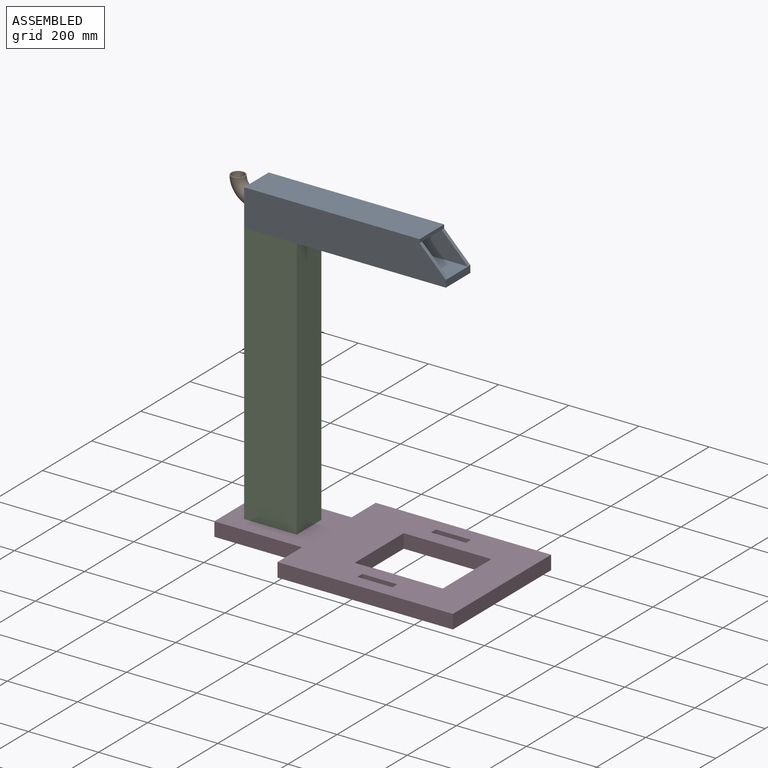
[diagram: assembled view]
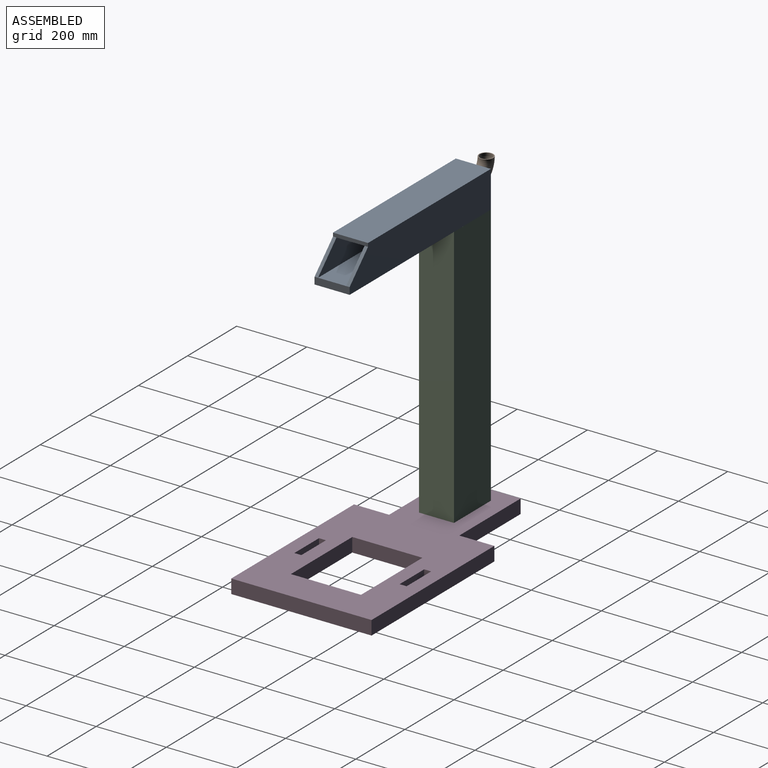
[diagram: assembled view, second angle]
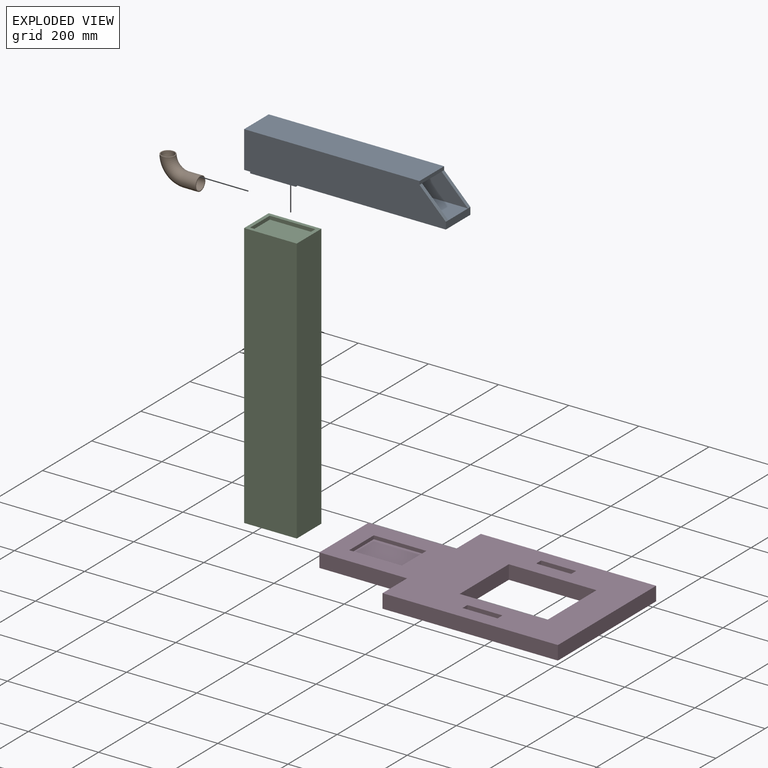
[diagram: exploded view]
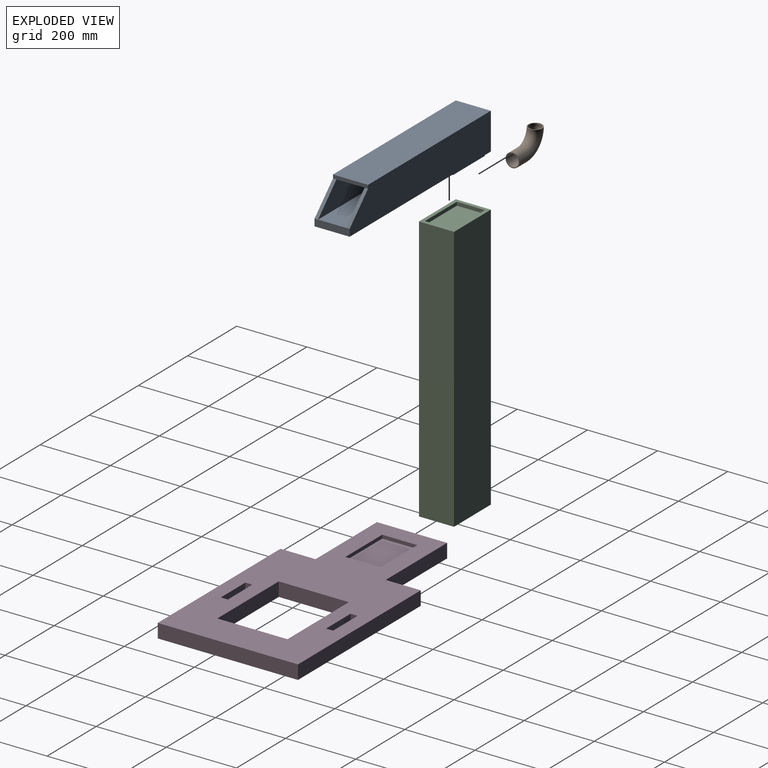
[diagram: exploded view, second angle]
ASSEMBLY  parts=4 mates=3
PART A: 20 faces, bbox 575x100x115 mm
  f0: plane 555x80mm, normal (0,0,1), area 44400mm2, adj f1,f2,f8,f18
  f1: plane 555x75mm, normal (0,-1,0), area 38812.5mm2, adj f0,f3,f14,f18
  f2: plane 555x75mm, normal (0,1,0), area 38812.5mm2, adj f0,f3,f15,f18
  f3: plane 480x80mm, normal (0,0,-1), area 38400mm2, adj f1,f2,f16,f18
  f4: plane 575x100mm, normal (0,0,-1), area 47100mm2, adj f5,f6,f7,f8,f9,f10,f11,f12
  f5: plane 575x105mm, normal (0,1,0), area 56812.5mm2, adj f4,f6,f8,f14,f16,f17
  f6: plane 105x100mm, normal (-1,0,0), area 9243.4mm2, adj f4,f5,f7,f17,f19
  f7: plane 575x105mm, normal (0,-1,0), area 56812.5mm2, adj f4,f6,f8,f15,f16,f17
  f8: plane 100x20mm, normal (1,0,0), area 2000mm2, adj f0,f4,f5,f7,f14,f15
  f9: plane 130x10mm, normal (0,1,0), area 1300mm2, adj f4,f10,f12,f13
  f10: plane 80x10mm, normal (1,0,0), area 800mm2, adj f4,f9,f11,f13
  f11: plane 130x10mm, normal (0,-1,0), area 1300mm2, adj f4,f10,f12,f13
  f12: plane 80x10mm, normal (-1,0,0), area 800mm2, adj f4,f9,f11,f13
  f13: plane 130x80mm, normal (0,0,-1), area 10400mm2, adj f9,f10,f11,f12
  f14: plane 75x75mm, normal (0.71,0,0.71), area 1060.7mm2, adj f1,f5,f8,f16
  f15: plane 75x75mm, normal (0.71,0,0.71), area 1060.7mm2, adj f2,f7,f8,f16
  f16: plane 100x10mm, normal (1,0,0), area 1000mm2, adj f3,f5,f7,f14,f15,f17
  f17: plane 500x100mm, normal (0,0,1), area 50000mm2, adj f5,f6,f7,f16
  f18: plane 80x75mm, normal (1,0,0), area 4743.4mm2, adj f0,f1,f2,f3,f19
  f19: cylinder r=20mm len=40mm, axis (-1,0,0), area 2513.3mm2, adj f6,f18
PART B: 6 faces, bbox 118.5x40x78.5 mm
  f0: cylinder r=20mm len=40mm, axis (-1,0,0), area 5026.5mm2, adj f1,f2
  f1: plane 40x40mm, normal (1,0,0), area 294.5mm2, adj f0,f4
  f2: torus R=52.5mm, axis (0,-1,0), area 10363.1mm2, adj f0,f3
  f3: plane 40x40mm, normal (0,0,1), area 294.5mm2, adj f2,f5
  f4: cylinder r=17.5mm len=40mm, axis (-1,0,0), area 4398.2mm2, adj f1,f5
  f5: torus R=52.5mm, axis (0,-1,0), area 9067.7mm2, adj f3,f4
PART C: 11 faces, bbox 150x100x760 mm
  f0: plane 150x100mm, normal (0,0,1), area 4600mm2, adj f1,f2,f3,f4,f6,f7,f8,f9
  f1: plane 760x150mm, normal (0,1,0), area 114000mm2, adj f0,f2,f4,f5
  f2: plane 760x100mm, normal (-1,0,0), area 76000mm2, adj f0,f1,f3,f5
  f3: plane 760x150mm, normal (0,-1,0), area 114000mm2, adj f0,f2,f4,f5
  f4: plane 760x100mm, normal (1,0,0), area 76000mm2, adj f0,f1,f3,f5
  f5: plane 150x100mm, normal (0,0,-1), area 15000mm2, adj f1,f2,f3,f4
  f6: plane 130x10mm, normal (0,-1,0), area 1300mm2, adj f0,f7,f9,f10
  f7: plane 80x10mm, normal (-1,0,0), area 800mm2, adj f0,f6,f8,f10
  f8: plane 130x10mm, normal (0,1,0), area 1300mm2, adj f0,f7,f9,f10
  f9: plane 80x10mm, normal (1,0,0), area 800mm2, adj f0,f6,f8,f10
  f10: plane 130x80mm, normal (0,0,1), area 10400mm2, adj f6,f7,f8,f9
PART D: 29 faces, bbox 750x400x40 mm
  f0: plane 750x400mm, normal (0,0,1), area 181000mm2, adj f1,f2,f3,f4,f5,f6,f7,f8
  f1: plane 500x40mm, normal (0,1,0), area 20000mm2, adj f0,f2,f12,f13
  f2: plane 400x40mm, normal (1,0,0), area 16000mm2, adj f0,f1,f3,f13
  f3: plane 500x40mm, normal (0,-1,0), area 20000mm2, adj f0,f2,f4,f13
  f4: plane 100x40mm, normal (-1,0,0), area 4000mm2, adj f0,f3,f5,f13
  f5: plane 250x40mm, normal (0,-1,0), area 10000mm2, adj f0,f4,f6,f13
  f6: plane 200x40mm, normal (-1,0,0), area 8000mm2, adj f0,f5,f7,f13
  f7: plane 250x40mm, normal (0,1,0), area 10000mm2, adj f0,f6,f12,f13
  f8: plane 200x40mm, normal (-1,0,0), area 8000mm2, adj f0,f9,f11,f13
  f9: plane 250x40mm, normal (0,-1,0), area 10000mm2, adj f0,f8,f10,f13
  f10: plane 200x40mm, normal (1,0,0), area 8000mm2, adj f0,f9,f11,f13
  f11: plane 250x40mm, normal (0,1,0), area 10000mm2, adj f0,f8,f10,f13
  f12: plane 100x40mm, normal (-1,0,0), area 4000mm2, adj f0,f1,f7,f13
  f13: plane 750x400mm, normal (0,0,-1), area 200000mm2, adj f1,f2,f3,f4,f5,f6,f7,f8
  f14: plane 20x20mm, normal (1,0,0), area 400mm2, adj f0,f16,f17,f18
  f15: plane 20x20mm, normal (-1,0,0), area 400mm2, adj f0,f16,f17,f18
  f16: plane 100x20mm, normal (0,-1,0), area 2000mm2, adj f0,f14,f15,f18
  f17: plane 100x20mm, normal (0,1,0), area 2000mm2, adj f0,f14,f15,f18
  f18: plane 100x20mm, normal (0,0,1), area 2000mm2, adj f14,f15,f16,f17
  f19: plane 20x20mm, normal (1,0,0), area 400mm2, adj f0,f21,f22,f23
  f20: plane 20x20mm, normal (-1,0,0), area 400mm2, adj f0,f21,f22,f23
  f21: plane 100x20mm, normal (0,1,0), area 2000mm2, adj f0,f19,f20,f23
  f22: plane 100x20mm, normal (0,-1,0), area 2000mm2, adj f0,f19,f20,f23
  f23: plane 100x20mm, normal (0,0,1), area 2000mm2, adj f19,f20,f21,f22
  f24: plane 150x10mm, normal (0,-1,0), area 1500mm2, adj f0,f25,f27,f28
  f25: plane 100x10mm, normal (1,0,0), area 1000mm2, adj f0,f24,f26,f28
  f26: plane 150x10mm, normal (0,1,0), area 1500mm2, adj f0,f25,f27,f28
  f27: plane 100x10mm, normal (-1,0,0), area 1000mm2, adj f0,f24,f26,f28
  f28: plane 150x100mm, normal (0,0,1), area 15000mm2, adj f24,f25,f26,f27
PLACE A at identity
PLACE B at identity
PLACE C at identity
PLACE D at identity fixed
MATE fastened B.f0 <-> A.f19  axis (-1,0,0) through (-450,0,462.5)mm
MATE fastened C.f5 <-> D.f28  axis (0,0,-1) through (-375,0,-350)mm
MATE fastened A.f13 <-> C.f10  axis (0,0,-1) through (-375,0,400)mm
